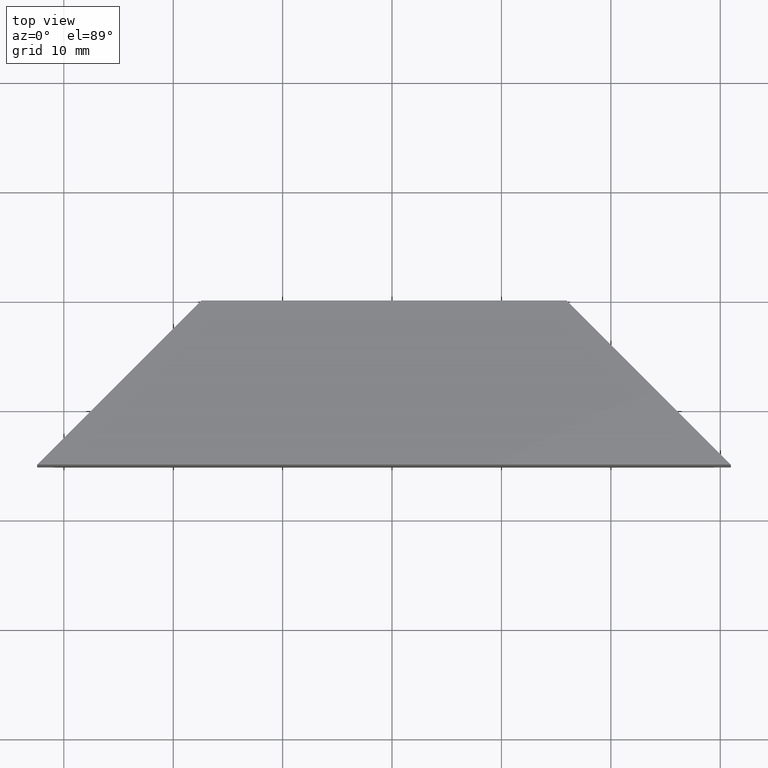
[diagram: clean part render]
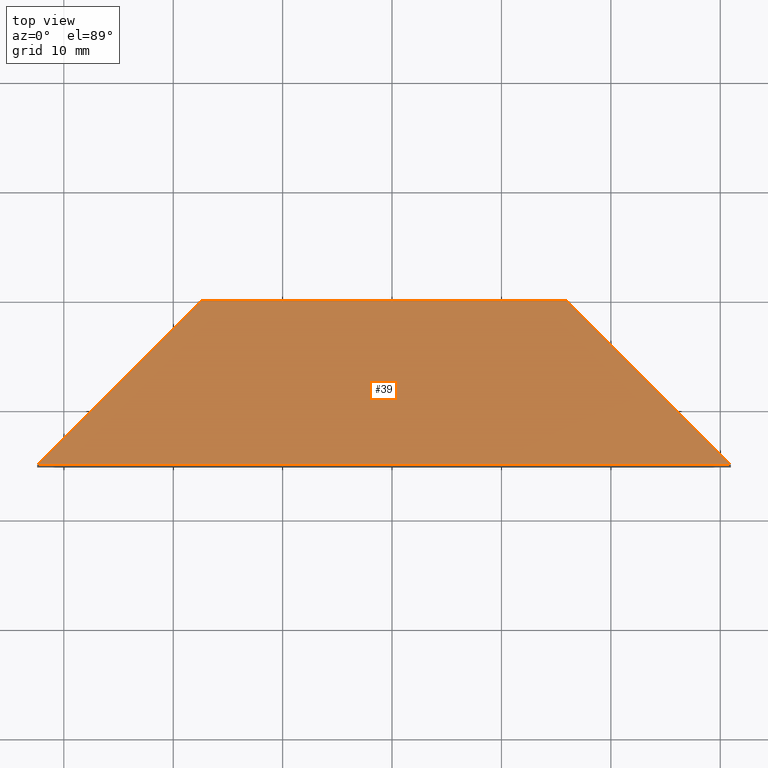
[diagram: same view with one face highlighted and labeled with its STEP entity id]
A machine part, top view. The second image highlights one B-rep face of the part: STEP entity #39.
In plain terms, the highlighted planar face has unit normal (0, -0, 1).
Its self-contained STEP definition (entity closure, byte-faithful):
#3 = LINE ( 'NONE', #79, #52 ) ;
#12 = EDGE_CURVE ( 'NONE', #212, #216, #3, .T. ) ;
#19 = LINE ( 'NONE', #192, #268 ) ;
#25 = EDGE_LOOP ( 'NONE', ( #85, #303, #294, #113 ) ) ;
#28 = DIRECTION ( 'NONE',  ( -0.7071067811865540100, 0.7071067811865410200, 0.0000000000000000000 ) ) ;
#33 = VERTEX_POINT ( 'NONE', #131 ) ;
#39 = ADVANCED_FACE ( 'NONE', ( #80 ), #299, .T. ) ;
#52 = VECTOR ( 'NONE', #28, 1000.000000000000100 ) ;
#58 = CARTESIAN_POINT ( 'NONE',  ( 72.56530050263808100, 89.88315572825170800, 15.00000000000000000 ) ) ;
#59 = CARTESIAN_POINT ( 'NONE',  ( 57.56530050263808100, 74.88315572825172200, 15.00000000000000000 ) ) ;
#79 = CARTESIAN_POINT ( 'NONE',  ( 120.9653007026382200, 74.88315572825172200, 15.00000000000000000 ) ) ;
#80 = FACE_OUTER_BOUND ( 'NONE', #25, .T. ) ;
#81 = DIRECTION ( 'NONE',  ( 0.0000000000000000000, -0.0000000000000000000, 1.000000000000000000 ) ) ;
#85 = ORIENTED_EDGE ( 'NONE', *, *, #150, .T. ) ;
#90 = DIRECTION ( 'NONE',  ( 1.000000000000000000, 0.0000000000000000000, 0.0000000000000000000 ) ) ;
#91 = EDGE_CURVE ( 'NONE', #216, #33, #198, .T. ) ;
#113 = ORIENTED_EDGE ( 'NONE', *, *, #91, .T. ) ;
#131 = CARTESIAN_POINT ( 'NONE',  ( 72.56530050263808100, 89.88315572825170800, 15.00000000000000000 ) ) ;
#143 = CARTESIAN_POINT ( 'NONE',  ( 57.56530050263808100, 74.88315572825172200, 15.00000000000000000 ) ) ;
#150 = EDGE_CURVE ( 'NONE', #33, #275, #295, .T. ) ;
#159 = DIRECTION ( 'NONE',  ( -1.000000000000000000, -0.0000000000000000000, -0.0000000000000000000 ) ) ;
#191 = DIRECTION ( 'NONE',  ( -0.7071067811865474600, -0.7071067811865474600, -0.0000000000000000000 ) ) ;
#192 = CARTESIAN_POINT ( 'NONE',  ( 57.56530050263808100, 74.88315572825172200, 15.00000000000000000 ) ) ;
#198 = LINE ( 'NONE', #58, #283 ) ;
#212 = VERTEX_POINT ( 'NONE', #304 ) ;
#216 = VERTEX_POINT ( 'NONE', #237 ) ;
#227 = VECTOR ( 'NONE', #191, 1000.000000000000100 ) ;
#232 = CARTESIAN_POINT ( 'NONE',  ( 0.0000000000000000000, 0.0000000000000000000, 15.00000000000000000 ) ) ;
#233 = EDGE_CURVE ( 'NONE', #275, #212, #19, .T. ) ;
#237 = CARTESIAN_POINT ( 'NONE',  ( 105.9653007026379500, 89.88315572825170800, 15.00000000000000000 ) ) ;
#256 = DIRECTION ( 'NONE',  ( 1.000000000000000000, 0.0000000000000000000, -0.0000000000000000000 ) ) ;
#268 = VECTOR ( 'NONE', #90, 1000.000000000000000 ) ;
#275 = VERTEX_POINT ( 'NONE', #59 ) ;
#283 = VECTOR ( 'NONE', #159, 1000.000000000000000 ) ;
#294 = ORIENTED_EDGE ( 'NONE', *, *, #12, .T. ) ;
#295 = LINE ( 'NONE', #143, #227 ) ;
#296 = AXIS2_PLACEMENT_3D ( 'NONE', #232, #81, #256 ) ;
#299 = PLANE ( 'NONE',  #296 ) ;
#303 = ORIENTED_EDGE ( 'NONE', *, *, #233, .T. ) ;
#304 = CARTESIAN_POINT ( 'NONE',  ( 120.9653007026382200, 74.88315572825172200, 15.00000000000000000 ) ) ;